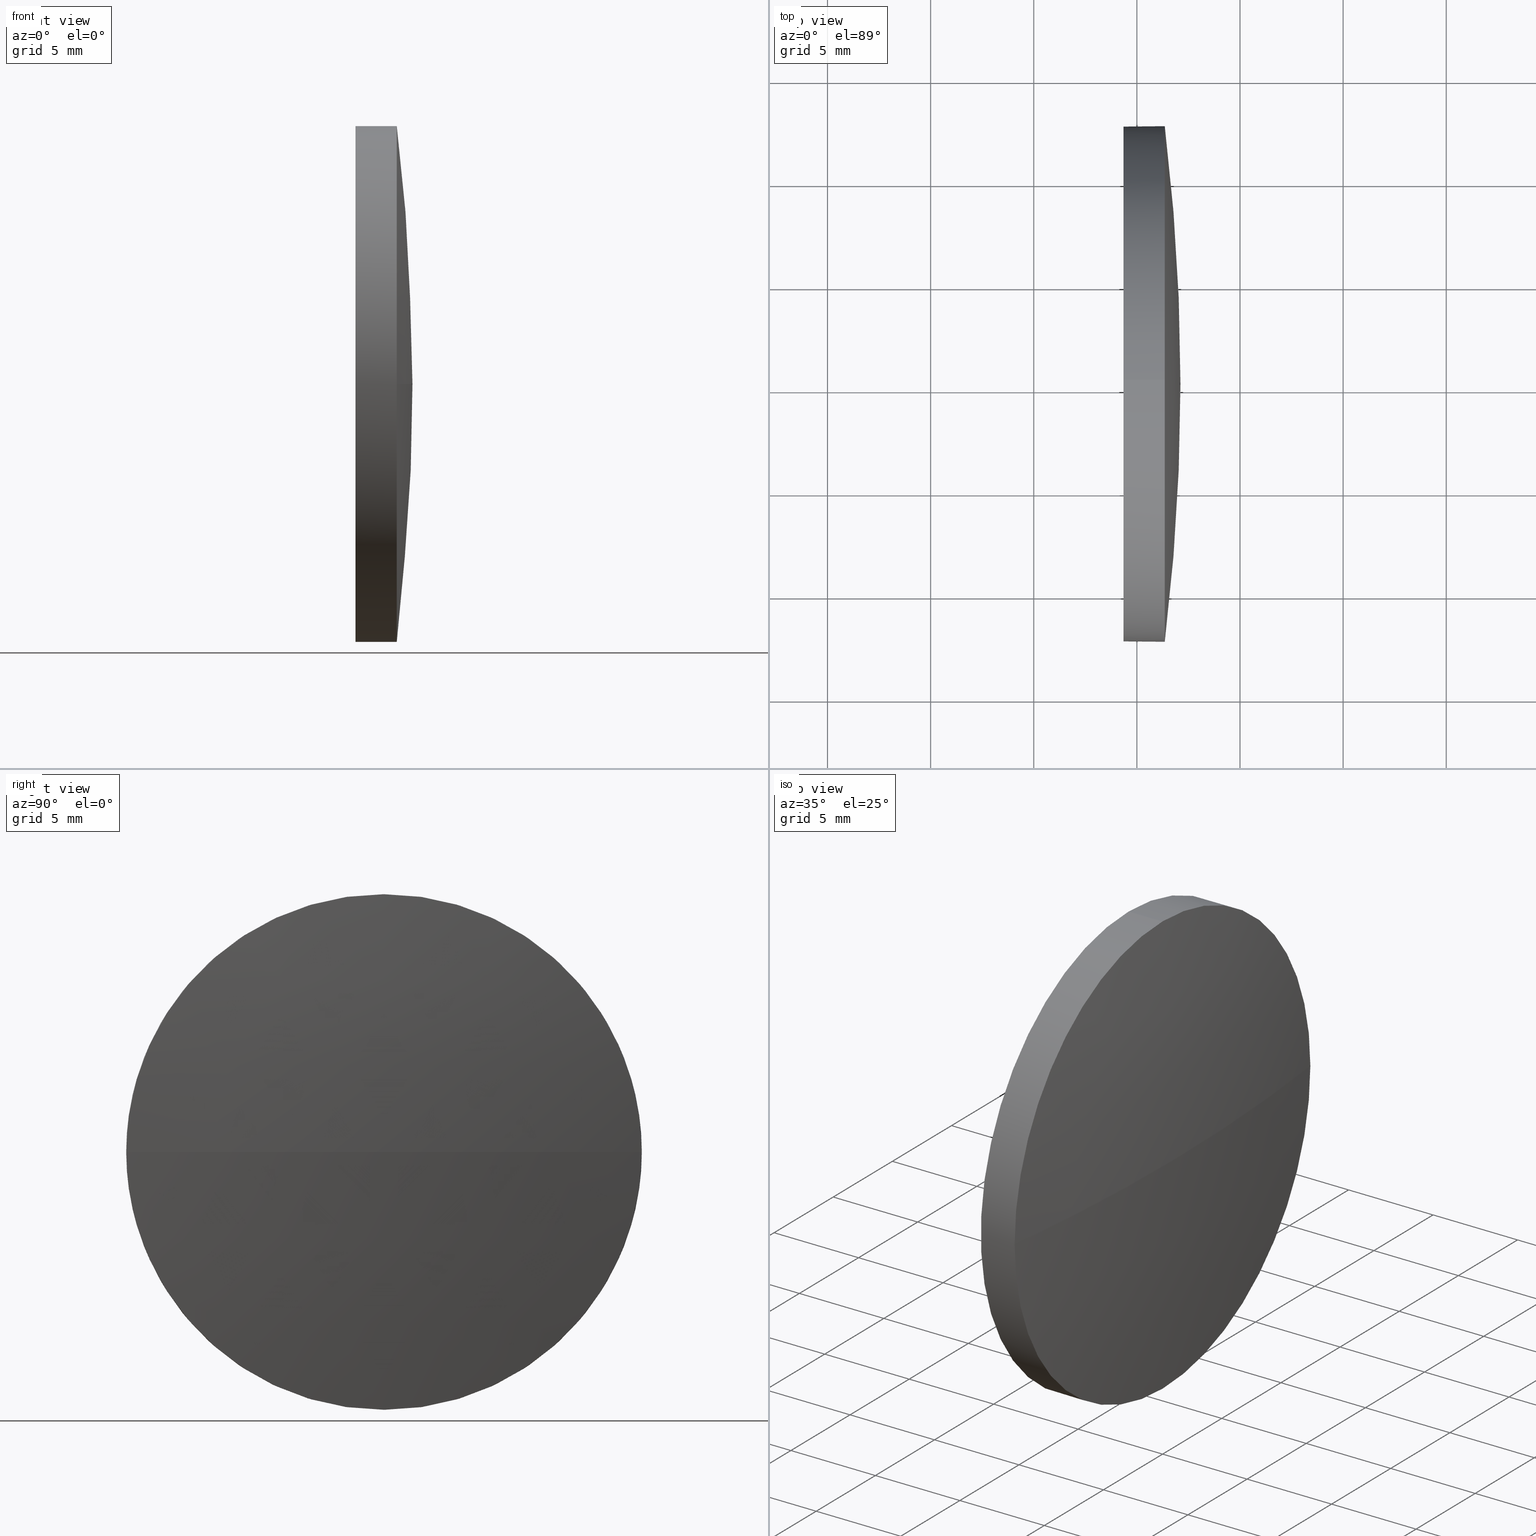
[diagram: canonical four-view strip — front | top / right | iso, engineering-drawing reading convention]
A machine part, canonical four-view strip (front | top / right | iso — engineering-drawing reading convention). The complete STEP part file that produces these views, byte-faithful:
ISO-10303-21;
HEADER;
FILE_DESCRIPTION (( 'STEP AP214' ),
    '1' );
FILE_NAME ('100219.STEP',
    '2019-05-24T01:36:38',
    ( '' ),
    ( '' ),
    'SwSTEP 2.0',
    'SolidWorks 2016',
    '' );
FILE_SCHEMA (( 'AUTOMOTIVE_DESIGN' ));
ENDSEC;

DATA;
#1 = CIRCLE ( 'NONE', #144, 12.49999999999999600 ) ;
#2 = CARTESIAN_POINT ( 'NONE',  ( 409.3519367756050500, 90.20022924379941300, 0.0000000000000000000 ) ) ;
#3 = STYLED_ITEM ( 'NONE', ( #185 ), #129 ) ;
#4 = SURFACE_STYLE_USAGE ( .BOTH. , #143 ) ;
#5 = MECHANICAL_DESIGN_GEOMETRIC_PRESENTATION_REPRESENTATION (  '', ( #174 ), #35 ) ;
#6 = FACE_OUTER_BOUND ( 'NONE', #71, .T. ) ;
#7 = FILL_AREA_STYLE ('',( #132 ) ) ;
#8 = ORIENTED_EDGE ( 'NONE', *, *, #57, .T. ) ;
#9 = ORIENTED_EDGE ( 'NONE', *, *, #43, .T. ) ;
#10 = EDGE_CURVE ( 'NONE', #66, #52, #1, .T. ) ;
#11 = VERTEX_POINT ( 'NONE', #124 ) ;
#12 = AXIS2_PLACEMENT_3D ( 'NONE', #163, #36, #161 ) ;
#13 = DIRECTION ( 'NONE',  ( -1.000000000000000000, -0.0000000000000000000, -0.0000000000000000000 ) ) ;
#14 = ORIENTED_EDGE ( 'NONE', *, *, #138, .T. ) ;
#15 = DIRECTION ( 'NONE',  ( -0.0000000000000000000, 0.0000000000000000000, -1.000000000000000000 ) ) ;
#16 = CARTESIAN_POINT ( 'NONE',  ( 411.3519367756050500, 102.7002292437993300, 0.0000000000000000000 ) ) ;
#17 = CARTESIAN_POINT ( 'NONE',  ( 412.1119367756050500, 90.20022924379924200, 0.0000000000000000000 ) ) ;
#18 = ORIENTED_EDGE ( 'NONE', *, *, #77, .T. ) ;
#19 = CIRCLE ( 'NONE', #107, 12.49999999999999600 ) ;
#20 =( NAMED_UNIT ( * ) SI_UNIT ( $, .STERADIAN. ) SOLID_ANGLE_UNIT ( ) );
#21 = SURFACE_STYLE_USAGE ( .BOTH. , #103 ) ;
#22 = ORIENTED_EDGE ( 'NONE', *, *, #57, .F. ) ;
#23 = FACE_OUTER_BOUND ( 'NONE', #118, .T. ) ;
#24 =( GEOMETRIC_REPRESENTATION_CONTEXT ( 3 ) GLOBAL_UNCERTAINTY_ASSIGNED_CONTEXT ( ( #179 ) ) GLOBAL_UNIT_ASSIGNED_CONTEXT ( ( #158, #75, #20 ) ) REPRESENTATION_CONTEXT ( 'NONE', 'WORKASPACE' ) );
#25 = VERTEX_POINT ( 'NONE', #16 ) ;
#26 = SURFACE_STYLE_FILL_AREA ( #7 ) ;
#27 = EDGE_CURVE ( 'NONE', #52, #25, #136, .T. ) ;
#28 = PRODUCT_DEFINITION ( 'δ֪', '', #152, #146 ) ;
#29 = ADVANCED_FACE ( 'NONE', ( #153 ), #98, .T. ) ;
#30 = ORIENTED_EDGE ( 'NONE', *, *, #43, .F. ) ;
#31 = CARTESIAN_POINT ( 'NONE',  ( 407.3228291971680600, 90.20022924379941300, -12.49999999999999600 ) ) ;
#32 = DIRECTION ( 'NONE',  ( 0.0000000000000000000, 0.0000000000000000000, 1.000000000000000000 ) ) ;
#33 = DIRECTION ( 'NONE',  ( 0.0000000000000000000, 0.0000000000000000000, 1.000000000000000000 ) ) ;
#34 = APPLICATION_CONTEXT ( 'automotive_design' ) ;
#35 =( GEOMETRIC_REPRESENTATION_CONTEXT ( 3 ) GLOBAL_UNCERTAINTY_ASSIGNED_CONTEXT ( ( #175 ) ) GLOBAL_UNIT_ASSIGNED_CONTEXT ( ( #164, #78, #127 ) ) REPRESENTATION_CONTEXT ( 'NONE', 'WORKASPACE' ) );
#36 = DIRECTION ( 'NONE',  ( -1.000000000000000000, -0.0000000000000000000, -0.0000000000000000000 ) ) ;
#37 = DIRECTION ( 'NONE',  ( 0.0000000000000000000, 0.0000000000000000000, 1.000000000000000000 ) ) ;
#38 = PRODUCT_RELATED_PRODUCT_CATEGORY ( 'part', '', ( #54 ) ) ;
#39 = LINE ( 'NONE', #31, #115 ) ;
#40 = UNCERTAINTY_MEASURE_WITH_UNIT (LENGTH_MEASURE( 1.000000000000000100E-005 ), #87, 'distance_accuracy_value', 'NONE');
#41 = CIRCLE ( 'NONE', #116, 103.1760526315793200 ) ;
#42 = DIRECTION ( 'NONE',  ( 0.0000000000000000000, 1.000000000000000000, 1.224646799147353200E-016 ) ) ;
#43 = EDGE_CURVE ( 'NONE', #128, #25, #149, .T. ) ;
#44 = ORIENTED_EDGE ( 'NONE', *, *, #27, .T. ) ;
#45 = DIRECTION ( 'NONE',  ( 1.000000000000000000, 0.0000000000000000000, 0.0000000000000000000 ) ) ;
#46 = CARTESIAN_POINT ( 'NONE',  ( 0.0000000000000000000, 0.0000000000000000000, 0.0000000000000000000 ) ) ;
#47 = CARTESIAN_POINT ( 'NONE',  ( 407.3228291971680600, 90.20022924379941300, 0.0000000000000000000 ) ) ;
#48 = DIRECTION ( 'NONE',  ( 1.000000000000000000, 0.0000000000000000000, 0.0000000000000000000 ) ) ;
#49 = CARTESIAN_POINT ( 'NONE',  ( 409.3519367756050500, 90.20022924379941300, 0.0000000000000000000 ) ) ;
#50 = DIRECTION ( 'NONE',  ( -1.000000000000000000, -0.0000000000000000000, -0.0000000000000000000 ) ) ;
#51 = ORIENTED_EDGE ( 'NONE', *, *, #67, .T. ) ;
#52 = VERTEX_POINT ( 'NONE', #110 ) ;
#53 = APPLICATION_PROTOCOL_DEFINITION ( 'draft international standard', 'automotive_design', 1998, #92 ) ;
#54 = PRODUCT ( '100219', '100219', '', ( #135 ) ) ;
#55 =( GEOMETRIC_REPRESENTATION_CONTEXT ( 3 ) GLOBAL_UNCERTAINTY_ASSIGNED_CONTEXT ( ( #40 ) ) GLOBAL_UNIT_ASSIGNED_CONTEXT ( ( #87, #117, #90 ) ) REPRESENTATION_CONTEXT ( 'NONE', 'WORKASPACE' ) );
#56 = COLOUR_RGB ( '',1.000000000000000000, 1.000000000000000000, 1.000000000000000000 ) ;
#57 = EDGE_CURVE ( 'NONE', #128, #66, #41, .T. ) ;
#58 = CARTESIAN_POINT ( 'NONE',  ( 411.3519367756050500, 90.20022924379941300, 0.0000000000000000000 ) ) ;
#59 = DIRECTION ( 'NONE',  ( -1.000000000000000000, -0.0000000000000000000, -0.0000000000000000000 ) ) ;
#60 = APPLICATION_PROTOCOL_DEFINITION ( 'draft international standard', 'automotive_design', 1998, #34 ) ;
#61 = PLANE ( 'NONE',  #123 ) ;
#62 = DIRECTION ( 'NONE',  ( -1.000000000000000000, -0.0000000000000000000, -0.0000000000000000000 ) ) ;
#63 = ORIENTED_EDGE ( 'NONE', *, *, #138, .F. ) ;
#64 = FILL_AREA_STYLE_COLOUR ( '', #56 ) ;
#65 = ADVANCED_BREP_SHAPE_REPRESENTATION ( '100219', ( #129, #125 ), #24 ) ;
#66 = VERTEX_POINT ( 'NONE', #154 ) ;
#67 = EDGE_CURVE ( 'NONE', #166, #11, #39, .T. ) ;
#68 = DIRECTION ( 'NONE',  ( -1.000000000000000000, -0.0000000000000000000, -0.0000000000000000000 ) ) ;
#69 = DIRECTION ( 'NONE',  ( -0.0000000000000000000, 0.0000000000000000000, 1.000000000000000000 ) ) ;
#70 = AXIS2_PLACEMENT_3D ( 'NONE', #186, #15, #157 ) ;
#71 = EDGE_LOOP ( 'NONE', ( #165, #51, #82, #86, #44 ) ) ;
#72 = CARTESIAN_POINT ( 'NONE',  ( 411.3519367756050500, 90.20022924379941300, 0.0000000000000000000 ) ) ;
#73 = DIRECTION ( 'NONE',  ( 0.0000000000000000000, 0.0000000000000000000, 1.000000000000000000 ) ) ;
#74 = CARTESIAN_POINT ( 'NONE',  ( 407.3228291971680600, 90.20022924379941300, 12.49999999999999600 ) ) ;
#75 =( NAMED_UNIT ( * ) PLANE_ANGLE_UNIT ( ) SI_UNIT ( $, .RADIAN. ) );
#76 = DIRECTION ( 'NONE',  ( 0.0000000000000000000, 1.000000000000000000, 0.0000000000000000000 ) ) ;
#77 = EDGE_CURVE ( 'NONE', #176, #11, #79, .T. ) ;
#78 =( NAMED_UNIT ( * ) PLANE_ANGLE_UNIT ( ) SI_UNIT ( $, .RADIAN. ) );
#79 = CIRCLE ( 'NONE', #104, 12.49999999999999600 ) ;
#80 = AXIS2_PLACEMENT_3D ( 'NONE', #47, #50, #145 ) ;
#81 = AXIS2_PLACEMENT_3D ( 'NONE', #58, #68, #173 ) ;
#82 = ORIENTED_EDGE ( 'NONE', *, *, #77, .F. ) ;
#83 = AXIS2_PLACEMENT_3D ( 'NONE', #126, #69, #45 ) ;
#84 = CARTESIAN_POINT ( 'NONE',  ( 411.3519367756050500, 90.20022924379941300, 0.0000000000000000000 ) ) ;
#85 = DIRECTION ( 'NONE',  ( 1.000000000000000000, 0.0000000000000000000, 0.0000000000000000000 ) ) ;
#86 = ORIENTED_EDGE ( 'NONE', *, *, #181, .F. ) ;
#87 =( LENGTH_UNIT ( ) NAMED_UNIT ( * ) SI_UNIT ( .MILLI., .METRE. ) );
#88 = CYLINDRICAL_SURFACE ( 'NONE', #80, 12.49999999999999600 ) ;
#89 = EDGE_CURVE ( 'NONE', #166, #66, #109, .T. ) ;
#90 =( NAMED_UNIT ( * ) SI_UNIT ( $, .STERADIAN. ) SOLID_ANGLE_UNIT ( ) );
#91 = CARTESIAN_POINT ( 'NONE',  ( 409.3519367756050500, 90.20022924379941300, 12.49999999999999600 ) ) ;
#92 = APPLICATION_CONTEXT ( 'automotive_design' ) ;
#93 = ORIENTED_EDGE ( 'NONE', *, *, #10, .T. ) ;
#94 = ADVANCED_FACE ( 'NONE', ( #6 ), #88, .T. ) ;
#95 = EDGE_CURVE ( 'NONE', #25, #166, #19, .T. ) ;
#96 = EDGE_LOOP ( 'NONE', ( #18, #14 ) ) ;
#97 = AXIS2_PLACEMENT_3D ( 'NONE', #84, #114, #37 ) ;
#98 = SPHERICAL_SURFACE ( 'NONE', #70, 103.1760526315793200 ) ;
#99 = DIRECTION ( 'NONE',  ( -1.000000000000000000, -0.0000000000000000000, -0.0000000000000000000 ) ) ;
#100 = ORIENTED_EDGE ( 'NONE', *, *, #67, .F. ) ;
#101 = COLOUR_RGB ( '',1.000000000000000000, 1.000000000000000000, 1.000000000000000000 ) ;
#102 = CARTESIAN_POINT ( 'NONE',  ( 411.3519367756050500, 90.20022924379941300, -12.49999999999999600 ) ) ;
#103 = SURFACE_SIDE_STYLE ('',( #105 ) ) ;
#104 = AXIS2_PLACEMENT_3D ( 'NONE', #171, #13, #32 ) ;
#105 = SURFACE_STYLE_FILL_AREA ( #182 ) ;
#106 = ORIENTED_EDGE ( 'NONE', *, *, #89, .F. ) ;
#107 = AXIS2_PLACEMENT_3D ( 'NONE', #178, #62, #113 ) ;
#108 = SPHERICAL_SURFACE ( 'NONE', #170, 103.1760526315793200 ) ;
#109 = CIRCLE ( 'NONE', #97, 12.49999999999999600 ) ;
#110 = CARTESIAN_POINT ( 'NONE',  ( 411.3519367756050500, 90.20022924379941300, 12.49999999999999600 ) ) ;
#111 = DIRECTION ( 'NONE',  ( 0.0000000000000000000, 1.224646799147353200E-016, -1.000000000000000000 ) ) ;
#112 = DIRECTION ( 'NONE',  ( -0.0000000000000000000, 0.0000000000000000000, -1.000000000000000000 ) ) ;
#113 = DIRECTION ( 'NONE',  ( 0.0000000000000000000, 0.0000000000000000000, 1.000000000000000000 ) ) ;
#114 = DIRECTION ( 'NONE',  ( -1.000000000000000000, -0.0000000000000000000, -0.0000000000000000000 ) ) ;
#115 = VECTOR ( 'NONE', #122, 1000.000000000000000 ) ;
#116 = AXIS2_PLACEMENT_3D ( 'NONE', #140, #111, #42 ) ;
#117 =( NAMED_UNIT ( * ) PLANE_ANGLE_UNIT ( ) SI_UNIT ( $, .RADIAN. ) );
#118 = EDGE_LOOP ( 'NONE', ( #22, #9, #160, #139 ) ) ;
#119 = EDGE_LOOP ( 'NONE', ( #100, #151, #93, #147, #63 ) ) ;
#120 = CIRCLE ( 'NONE', #141, 12.49999999999999600 ) ;
#121 = ADVANCED_FACE ( 'NONE', ( #162 ), #61, .F. ) ;
#122 = DIRECTION ( 'NONE',  ( -1.000000000000000000, -0.0000000000000000000, -0.0000000000000000000 ) ) ;
#123 = AXIS2_PLACEMENT_3D ( 'NONE', #2, #85, #159 ) ;
#124 = CARTESIAN_POINT ( 'NONE',  ( 409.3519367756050500, 90.20022924379941300, -12.49999999999999600 ) ) ;
#125 = AXIS2_PLACEMENT_3D ( 'NONE', #46, #73, #48 ) ;
#126 = CARTESIAN_POINT ( 'NONE',  ( 308.9358841440257500, 90.20022924379924200, 0.0000000000000000000 ) ) ;
#127 =( NAMED_UNIT ( * ) SI_UNIT ( $, .STERADIAN. ) SOLID_ANGLE_UNIT ( ) );
#128 = VERTEX_POINT ( 'NONE', #17 ) ;
#129 = MANIFOLD_SOLID_BREP ( '��ת1', #156 ) ;
#130 = CYLINDRICAL_SURFACE ( 'NONE', #12, 12.49999999999999600 ) ;
#131 = DIRECTION ( 'NONE',  ( -1.000000000000000000, -0.0000000000000000000, -0.0000000000000000000 ) ) ;
#132 = FILL_AREA_STYLE_COLOUR ( '', #101 ) ;
#133 = CARTESIAN_POINT ( 'NONE',  ( 308.9358841440257500, 90.20022924379924200, 0.0000000000000000000 ) ) ;
#134 = LINE ( 'NONE', #74, #148 ) ;
#135 = PRODUCT_CONTEXT ( 'NONE', #34, 'mechanical' ) ;
#136 = CIRCLE ( 'NONE', #81, 12.49999999999999600 ) ;
#137 = PRESENTATION_STYLE_ASSIGNMENT (( #21 ) ) ;
#138 = EDGE_CURVE ( 'NONE', #11, #176, #120, .T. ) ;
#139 = ORIENTED_EDGE ( 'NONE', *, *, #10, .F. ) ;
#140 = CARTESIAN_POINT ( 'NONE',  ( 308.9358841440257500, 90.20022924379924200, 0.0000000000000000000 ) ) ;
#141 = AXIS2_PLACEMENT_3D ( 'NONE', #49, #131, #177 ) ;
#142 = ORIENTED_EDGE ( 'NONE', *, *, #95, .F. ) ;
#143 = SURFACE_SIDE_STYLE ('',( #26 ) ) ;
#144 = AXIS2_PLACEMENT_3D ( 'NONE', #72, #99, #33 ) ;
#145 = DIRECTION ( 'NONE',  ( 0.0000000000000000000, 0.0000000000000000000, 1.000000000000000000 ) ) ;
#146 = PRODUCT_DEFINITION_CONTEXT ( 'detailed design', #92, 'design' ) ;
#147 = ORIENTED_EDGE ( 'NONE', *, *, #181, .T. ) ;
#148 = VECTOR ( 'NONE', #59, 1000.000000000000000 ) ;
#149 = CIRCLE ( 'NONE', #83, 103.1760526315793100 ) ;
#150 = ADVANCED_FACE ( 'NONE', ( #167 ), #130, .T. ) ;
#151 = ORIENTED_EDGE ( 'NONE', *, *, #89, .T. ) ;
#152 = PRODUCT_DEFINITION_FORMATION_WITH_SPECIFIED_SOURCE ( '�κ�', '', #54, .NOT_KNOWN. ) ;
#153 = FACE_OUTER_BOUND ( 'NONE', #183, .T. ) ;
#154 = CARTESIAN_POINT ( 'NONE',  ( 411.3519367756050500, 77.70022924379932800, -1.530808498934180100E-015 ) ) ;
#155 = PRESENTATION_LAYER_ASSIGNMENT (  '', '', ( #3 ) ) ;
#156 = CLOSED_SHELL ( 'NONE', ( #94, #29, #169, #150, #121 ) ) ;
#157 = DIRECTION ( 'NONE',  ( 0.0000000000000000000, 1.000000000000000000, 0.0000000000000000000 ) ) ;
#158 =( LENGTH_UNIT ( ) NAMED_UNIT ( * ) SI_UNIT ( .MILLI., .METRE. ) );
#159 = DIRECTION ( 'NONE',  ( 0.0000000000000000000, 0.0000000000000000000, -1.000000000000000000 ) ) ;
#160 = ORIENTED_EDGE ( 'NONE', *, *, #27, .F. ) ;
#161 = DIRECTION ( 'NONE',  ( 0.0000000000000000000, 0.0000000000000000000, 1.000000000000000000 ) ) ;
#162 = FACE_OUTER_BOUND ( 'NONE', #96, .T. ) ;
#163 = CARTESIAN_POINT ( 'NONE',  ( 407.3228291971680600, 90.20022924379941300, 0.0000000000000000000 ) ) ;
#164 =( LENGTH_UNIT ( ) NAMED_UNIT ( * ) SI_UNIT ( .MILLI., .METRE. ) );
#165 = ORIENTED_EDGE ( 'NONE', *, *, #95, .T. ) ;
#166 = VERTEX_POINT ( 'NONE', #102 ) ;
#167 = FACE_OUTER_BOUND ( 'NONE', #119, .T. ) ;
#168 = MECHANICAL_DESIGN_GEOMETRIC_PRESENTATION_REPRESENTATION (  '', ( #3 ), #55 ) ;
#169 = ADVANCED_FACE ( 'NONE', ( #23 ), #108, .T. ) ;
#170 = AXIS2_PLACEMENT_3D ( 'NONE', #133, #112, #76 ) ;
#171 = CARTESIAN_POINT ( 'NONE',  ( 409.3519367756050500, 90.20022924379941300, 0.0000000000000000000 ) ) ;
#172 = PRODUCT_DEFINITION_SHAPE ( 'NONE', 'NONE',  #28 ) ;
#173 = DIRECTION ( 'NONE',  ( 0.0000000000000000000, 0.0000000000000000000, 1.000000000000000000 ) ) ;
#174 = STYLED_ITEM ( 'NONE', ( #137 ), #65 ) ;
#175 = UNCERTAINTY_MEASURE_WITH_UNIT (LENGTH_MEASURE( 1.000000000000000100E-005 ), #164, 'distance_accuracy_value', 'NONE');
#176 = VERTEX_POINT ( 'NONE', #91 ) ;
#177 = DIRECTION ( 'NONE',  ( 0.0000000000000000000, 0.0000000000000000000, 1.000000000000000000 ) ) ;
#178 = CARTESIAN_POINT ( 'NONE',  ( 411.3519367756050500, 90.20022924379941300, 0.0000000000000000000 ) ) ;
#179 = UNCERTAINTY_MEASURE_WITH_UNIT (LENGTH_MEASURE( 1.000000000000000100E-005 ), #158, 'distance_accuracy_value', 'NONE');
#180 = SHAPE_DEFINITION_REPRESENTATION ( #172, #65 ) ;
#181 = EDGE_CURVE ( 'NONE', #52, #176, #134, .T. ) ;
#182 = FILL_AREA_STYLE ('',( #64 ) ) ;
#183 = EDGE_LOOP ( 'NONE', ( #30, #8, #106, #142 ) ) ;
#184 = PRESENTATION_LAYER_ASSIGNMENT (  '', '', ( #174 ) ) ;
#185 = PRESENTATION_STYLE_ASSIGNMENT (( #4 ) ) ;
#186 = CARTESIAN_POINT ( 'NONE',  ( 308.9358841440257500, 90.20022924379924200, 0.0000000000000000000 ) ) ;
ENDSEC;
END-ISO-10303-21;
